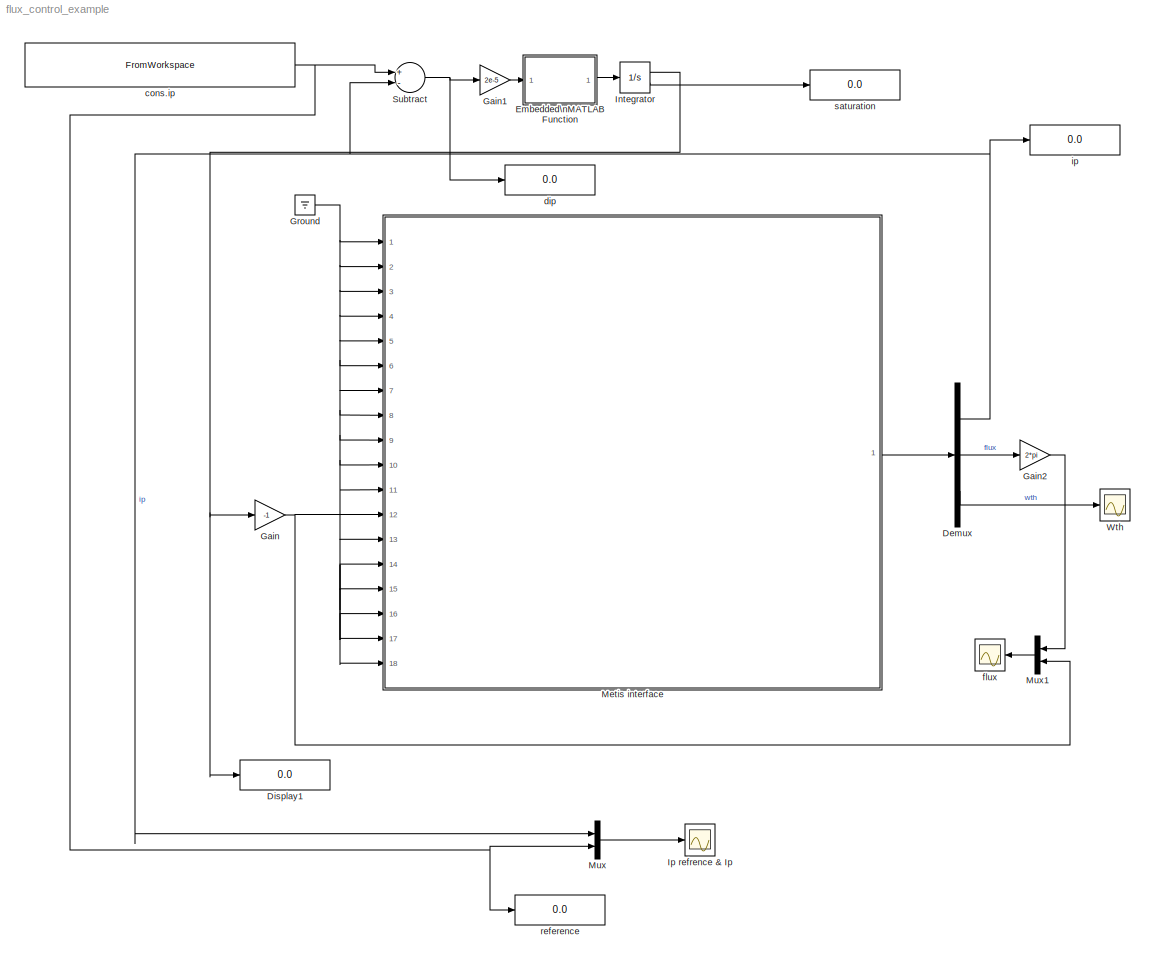
MODEL flux_control_example
KIND model
BLOCK [Demux] Demux
  DisplayOption = bar
  Outputs = 3
  Ports = [1, 3]
BLOCK [Display] Display1
  Decimation = 1
  Lockdown = off
  Ports = [1]
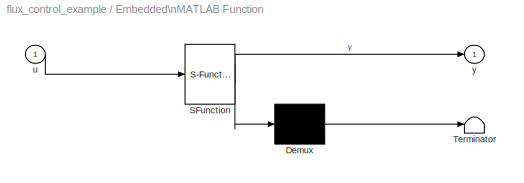
BLOCK [SubSystem] Embedded\nMATLAB Function
  MaskDescription = Embedded MATLAB block
  MaskDisplay = disp('fcn');
  MaskHideContents = off
  MaskIconFrame = on
  MaskIconOpaque = off
  MaskIconRotate = none
  MaskIconUnits = autoscale
  MaskSelfModifiable = on
  MaskType = Stateflow
  MinAlgLoopOccurrences = off
  Ports = [1, 1]
  RTWSystemCode = Auto
  TreatAsAtomicUnit = off
BLOCK [Demux] Embedded\nMATLAB Function/ Demux 
  Outputs = 1
  Ports = [1, 1]
BLOCK [S-Function] Embedded\nMATLAB Function/ SFunction 
  FunctionName = sf_sfun
  PortCounts = [1 2]
  Ports = [1, 2]
  Tag = Stateflow S-Function flux_control_example 2
BLOCK [Terminator] Embedded\nMATLAB Function/ Terminator 
BLOCK [Inport] Embedded\nMATLAB Function/u
  IconDisplay = Port number
BLOCK [Outport] Embedded\nMATLAB Function/y
  BusOutputAsStruct = off
  IconDisplay = Port number
BLOCK [Gain] Gain
  Gain = -1
  OutDataTypeMode = Inherit via internal rule
  ParameterDataTypeMode = Inherit via internal rule
  SaturateOnIntegerOverflow = off
BLOCK [Gain] Gain1
  Gain = 2e-5
  OutDataTypeMode = Inherit via internal rule
  ParameterDataTypeMode = Inherit via internal rule
  SaturateOnIntegerOverflow = off
BLOCK [Gain] Gain2
  Gain = 2*pi
  OutDataTypeMode = Inherit via internal rule
  ParameterDataTypeMode = Inherit via internal rule
  SaturateOnIntegerOverflow = off
BLOCK [Ground] Ground
BLOCK [Integrator] Integrator
  IgnoreLimit = off
  Ports = [1, 2]
  ShowSaturationPort = on
  ZeroCross = off
BLOCK [Scope] Ip refrence & Ip
  DataFormat = StructureWithTime
  Floating = off
  NumInputPorts = 1
  Ports = [1]
  SampleTime = 0
  SaveName = ScopeData3
  YMax = 800000
  YMin = 0
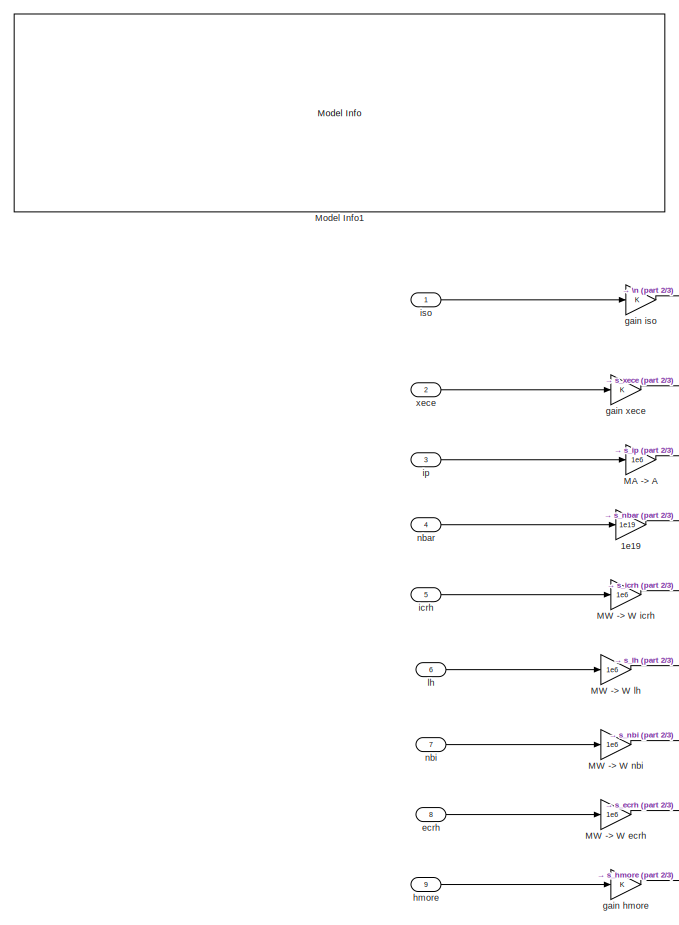
[diagram: Metis interface - part 1/3, top left region]
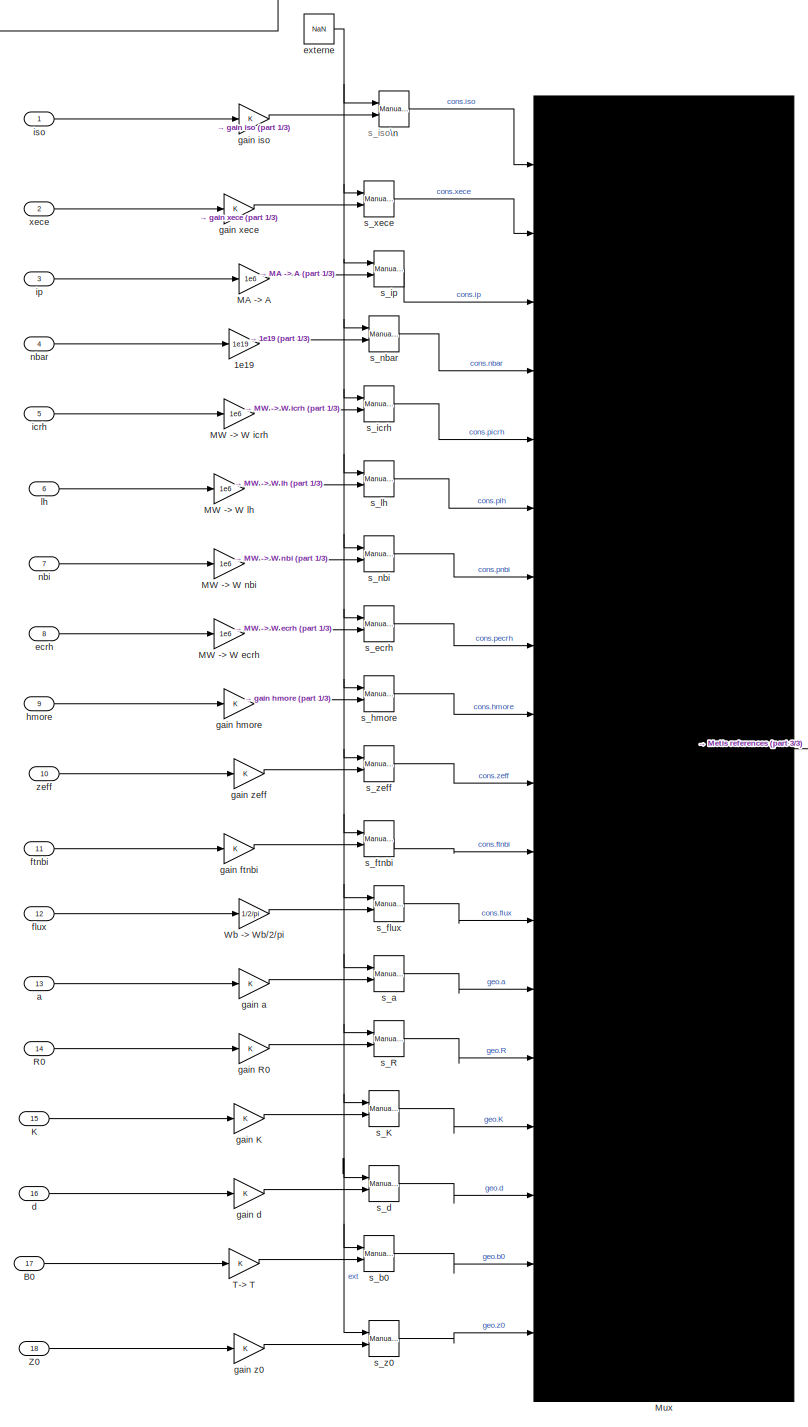
[diagram: Metis interface - part 2/3, center side, full height]
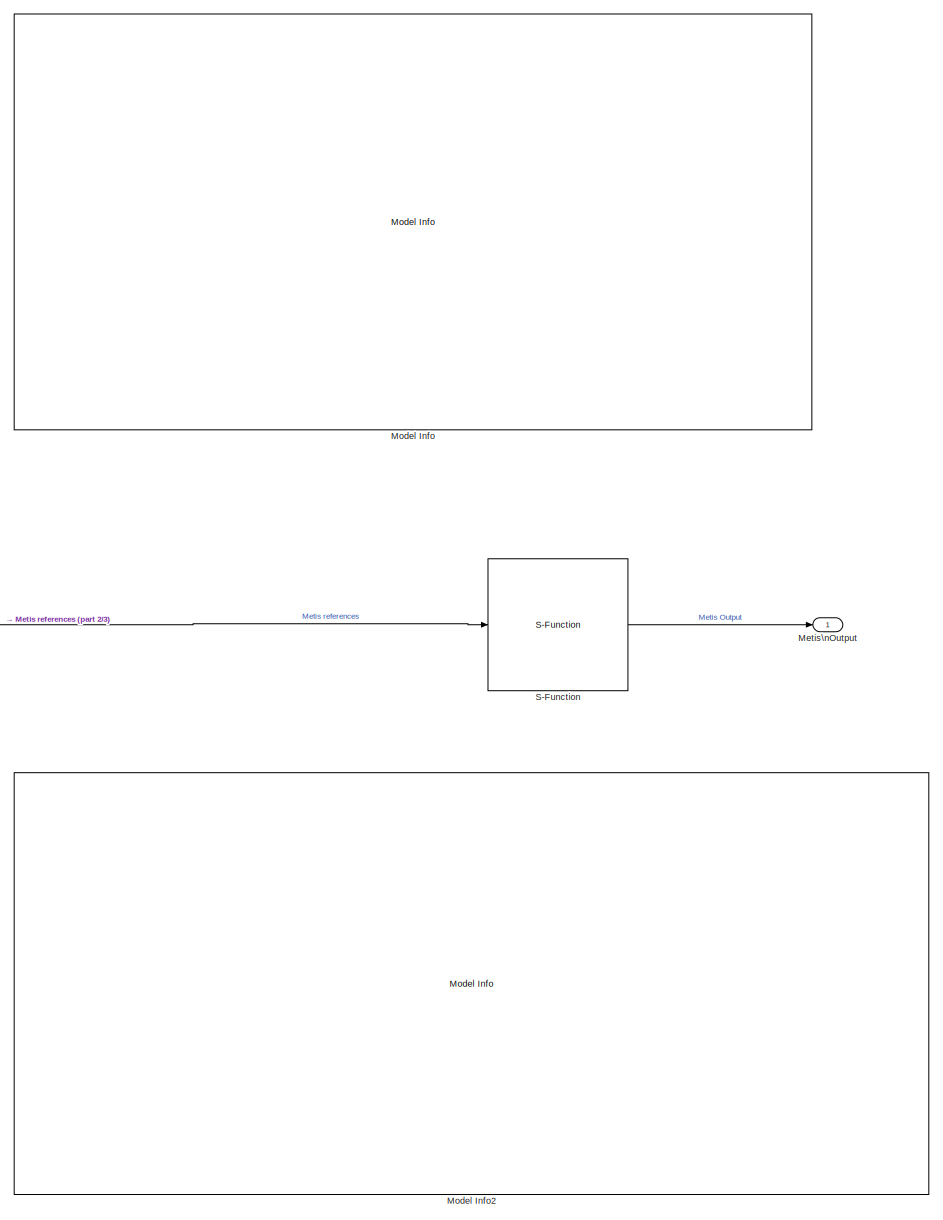
[diagram: Metis interface - part 3/3, right side, full height]
BLOCK [SubSystem] Metis interface
  AncestorBlock = library_simmetis/Metis interface
  MaskHideContents = off
  MinAlgLoopOccurrences = off
  Ports = [18, 1]
  RTWSystemCode = Auto
  TreatAsAtomicUnit = on
BLOCK [Gain] Metis interface/1e19
  Gain = 1e19
  OutDataTypeMode = Inherit via internal rule
  ParameterDataTypeMode = Inherit via internal rule
  SaturateOnIntegerOverflow = off
BLOCK [Inport] Metis interface/B0
  IconDisplay = Port number
  Port = 17
BLOCK [Inport] Metis interface/K
  IconDisplay = Port number
  Port = 15
BLOCK [Gain] Metis interface/MA -> A
  Gain = 1e6
  OutDataTypeMode = Inherit via internal rule
  ParameterDataTypeMode = Inherit via internal rule
  SaturateOnIntegerOverflow = off
BLOCK [Gain] Metis interface/MW -> W ecrh
  Gain = 1e6
  OutDataTypeMode = Inherit via internal rule
  ParameterDataTypeMode = Inherit via internal rule
  SaturateOnIntegerOverflow = off
BLOCK [Gain] Metis interface/MW -> W icrh
  Gain = 1e6
  OutDataTypeMode = Inherit via internal rule
  ParameterDataTypeMode = Inherit via internal rule
  SaturateOnIntegerOverflow = off
BLOCK [Gain] Metis interface/MW -> W lh
  Gain = 1e6
  OutDataTypeMode = Inherit via internal rule
  ParameterDataTypeMode = Inherit via internal rule
  SaturateOnIntegerOverflow = off
BLOCK [Gain] Metis interface/MW -> W nbi
  Gain = 1e6
  OutDataTypeMode = Inherit via internal rule
  ParameterDataTypeMode = Inherit via internal rule
  SaturateOnIntegerOverflow = off
BLOCK [Outport] Metis interface/Metis\nOutput
  BusOutputAsStruct = off
  IconDisplay = Port number
BLOCK [Reference] Metis interface/Model Info  REF=simulink/Model-Wide\nUtilities/Model Info
  BlockCM = None
  DisplayStringWithTags = Interface_SimMetis : Library simmetis interface\n%<Created>\n%<ModifiedBy>\n%<ModifiedDate>\n%<ModifiedComment>\n%<Description>
  Frame = on
  HorizontalTextAlignment = Center
  InitialBlockCM = None
  LeftAlignmentValue = 0.5
  MaskDisplayString = Interface_SimMetis : Library simmetis interface\\nFri Oct 12 05:05:33 2007\\nJA132999\\nMon Oct 15 07:31:05 2007\\n\\n
  Ports = []
  ShowPortLabels = on
  SourceBlock = simulink/Model-Wide\nUtilities/Model Info
  SourceBlockDiagram = flux_control_example
  SourceType = CMBlock
  TagMaxNumber = 20
BLOCK [Reference] Metis interface/Model Info1  REF=simulink/Model-Wide\nUtilities/Model Info
  BlockCM = None
  DisplayStringWithTags = when an input is set to NaN, \nthe correspondant reference value\nis read from Metis file (or data) \nand linearely interpolate in time.
  Frame = on
  HorizontalTextAlignment = Center
  InitialBlockCM = None
  LeftAlignmentValue = 0.5
  MaskDisplayString = when an input is set to NaN, \\nthe correspondant reference value\\nis read from Metis file (or data) \\nand linearely interpolate in time.
  Ports = []
  ShowPortLabels = on
  SourceBlock = simulink/Model-Wide\nUtilities/Model Info
  SourceBlockDiagram = flux_control_example
  SourceType = CMBlock
  TagMaxNumber = 20
BLOCK [Reference] Metis interface/Model Info2  REF=simulink/Model-Wide\nUtilities/Model Info
  BlockCM = None
  DisplayStringWithTags = Simmetis parameters :\n* Metis_file_name : used to parametring Metis in simmetis \n(if empty used z0dinput in workspace,\n that allow to tune simulation configuration form Metis interface)\n* list_output : cell array of output names\n* save_file : results filename (optionnel)\n* verbose  : if = 1 turn on information writing
  Frame = on
  HorizontalTextAlignment = Left
  InitialBlockCM = None
  LeftAlignmentValue = 0.02
  MaskDisplayString = Simmetis parameters :\\n* Metis_file_name : used to parametring Metis in simmetis \\n(if empty used z0dinput in workspace,\\n that allow to tune simulation configuration form Metis interface)\\n* list_output : cell array of output names\\n* save_file : results filename (optionnel)\\n* verbose  : if = 1 turn on information writing
  Ports = []
  ShowPortLabels = on
  SourceBlock = simulink/Model-Wide\nUtilities/Model Info
  SourceBlockDiagram = flux_control_example
  SourceType = CMBlock
  TagMaxNumber = 20
BLOCK [Mux] Metis interface/Mux
  DisplayOption = signals
  Inputs = 18
  Ports = [18, 1]
  Tag = Metis refererences
BLOCK [Inport] Metis interface/R0
  IconDisplay = Port number
  Port = 14
BLOCK [S-Function] Metis interface/S-Function
  FunctionName = simmetis
  Parameters = '',{'ip','psi@21','wth'},'',0
  Ports = [1, 1]
BLOCK [Gain] Metis interface/T-> T
  OutDataTypeMode = Inherit via internal rule
  ParameterDataTypeMode = Inherit via internal rule
  SaturateOnIntegerOverflow = off
BLOCK [Gain] Metis interface/Wb -> Wb//2//pi
  Gain = 1/2/pi
  OutDataTypeMode = Inherit via internal rule
  ParameterDataTypeMode = Inherit via internal rule
  SaturateOnIntegerOverflow = off
BLOCK [Inport] Metis interface/Z0
  IconDisplay = Port number
  Port = 18
BLOCK [Reference] Metis interface/\n  REF=simulink/Signal\nRouting/Manual Switch
  Ports = [2, 1]
  ShowPortLabels = on
  SourceBlock = simulink/Signal\nRouting/Manual Switch
  SourceType = Manual Switch
  action = 0
  sw = 1
BLOCK [Inport] Metis interface/a
  IconDisplay = Port number
  Port = 13
BLOCK [Inport] Metis interface/d
  IconDisplay = Port number
  Port = 16
BLOCK [Inport] Metis interface/ecrh
  IconDisplay = Port number
  Port = 8
BLOCK [Constant] Metis interface/externe
  Value = NaN
BLOCK [Inport] Metis interface/flux
  IconDisplay = Port number
  Port = 12
BLOCK [Inport] Metis interface/ftnbi
  IconDisplay = Port number
  Port = 11
BLOCK [Gain] Metis interface/gain K
  OutDataTypeMode = Inherit via internal rule
  ParameterDataTypeMode = Inherit via internal rule
  SaturateOnIntegerOverflow = off
BLOCK [Gain] Metis interface/gain R0
  OutDataTypeMode = Inherit via internal rule
  ParameterDataTypeMode = Inherit via internal rule
  SaturateOnIntegerOverflow = off
BLOCK [Gain] Metis interface/gain a
  OutDataTypeMode = Inherit via internal rule
  ParameterDataTypeMode = Inherit via internal rule
  SaturateOnIntegerOverflow = off
BLOCK [Gain] Metis interface/gain d
  OutDataTypeMode = Inherit via internal rule
  ParameterDataTypeMode = Inherit via internal rule
  SaturateOnIntegerOverflow = off
BLOCK [Gain] Metis interface/gain ftnbi
  OutDataTypeMode = Inherit via internal rule
  ParameterDataTypeMode = Inherit via internal rule
  SaturateOnIntegerOverflow = off
BLOCK [Gain] Metis interface/gain hmore
  OutDataTypeMode = Inherit via internal rule
  ParameterDataTypeMode = Inherit via internal rule
  SaturateOnIntegerOverflow = off
BLOCK [Gain] Metis interface/gain iso
  OutDataTypeMode = Inherit via internal rule
  ParameterDataTypeMode = Inherit via internal rule
  SaturateOnIntegerOverflow = off
BLOCK [Gain] Metis interface/gain xece
  OutDataTypeMode = Inherit via internal rule
  ParameterDataTypeMode = Inherit via internal rule
  SaturateOnIntegerOverflow = off
BLOCK [Gain] Metis interface/gain z0
  OutDataTypeMode = Inherit via internal rule
  ParameterDataTypeMode = Inherit via internal rule
  SaturateOnIntegerOverflow = off
BLOCK [Gain] Metis interface/gain zeff
  OutDataTypeMode = Inherit via internal rule
  ParameterDataTypeMode = Inherit via internal rule
  SaturateOnIntegerOverflow = off
BLOCK [Inport] Metis interface/hmore
  IconDisplay = Port number
  Port = 9
BLOCK [Inport] Metis interface/icrh
  IconDisplay = Port number
  Port = 5
BLOCK [Inport] Metis interface/ip
  IconDisplay = Port number
  Port = 3
BLOCK [Inport] Metis interface/iso
  IconDisplay = Port number
BLOCK [Inport] Metis interface/lh
  IconDisplay = Port number
  Port = 6
BLOCK [Inport] Metis interface/nbar
  IconDisplay = Port number
  Port = 4
BLOCK [Inport] Metis interface/nbi
  IconDisplay = Port number
  Port = 7
BLOCK [Reference] Metis interface/s_K  REF=simulink/Signal\nRouting/Manual Switch
  Ports = [2, 1]
  ShowPortLabels = on
  SourceBlock = simulink/Signal\nRouting/Manual Switch
  SourceType = Manual Switch
  action = 0
  sw = 1
BLOCK [Reference] Metis interface/s_R  REF=simulink/Signal\nRouting/Manual Switch
  Ports = [2, 1]
  ShowPortLabels = on
  SourceBlock = simulink/Signal\nRouting/Manual Switch
  SourceType = Manual Switch
  action = 0
  sw = 1
BLOCK [Reference] Metis interface/s_a  REF=simulink/Signal\nRouting/Manual Switch
  Ports = [2, 1]
  ShowPortLabels = on
  SourceBlock = simulink/Signal\nRouting/Manual Switch
  SourceType = Manual Switch
  action = 0
  sw = 1
BLOCK [Reference] Metis interface/s_b0  REF=simulink/Signal\nRouting/Manual Switch
  Ports = [2, 1]
  ShowPortLabels = on
  SourceBlock = simulink/Signal\nRouting/Manual Switch
  SourceType = Manual Switch
  action = 0
  sw = 1
BLOCK [Reference] Metis interface/s_d  REF=simulink/Signal\nRouting/Manual Switch
  Ports = [2, 1]
  ShowPortLabels = on
  SourceBlock = simulink/Signal\nRouting/Manual Switch
  SourceType = Manual Switch
  action = 0
  sw = 1
BLOCK [Reference] Metis interface/s_ecrh  REF=simulink/Signal\nRouting/Manual Switch
  Ports = [2, 1]
  ShowPortLabels = on
  SourceBlock = simulink/Signal\nRouting/Manual Switch
  SourceType = Manual Switch
  action = 0
  sw = 1
BLOCK [Reference] Metis interface/s_flux  REF=simulink/Signal\nRouting/Manual Switch
  Ports = [2, 1]
  ShowPortLabels = on
  SourceBlock = simulink/Signal\nRouting/Manual Switch
  SourceType = Manual Switch
  action = 0
  sw = 0
BLOCK [Reference] Metis interface/s_ftnbi  REF=simulink/Signal\nRouting/Manual Switch
  Ports = [2, 1]
  ShowPortLabels = on
  SourceBlock = simulink/Signal\nRouting/Manual Switch
  SourceType = Manual Switch
  action = 0
  sw = 1
BLOCK [Reference] Metis interface/s_hmore  REF=simulink/Signal\nRouting/Manual Switch
  Ports = [2, 1]
  ShowPortLabels = on
  SourceBlock = simulink/Signal\nRouting/Manual Switch
  SourceType = Manual Switch
  action = 0
  sw = 1
BLOCK [Reference] Metis interface/s_icrh  REF=simulink/Signal\nRouting/Manual Switch
  Ports = [2, 1]
  ShowPortLabels = on
  SourceBlock = simulink/Signal\nRouting/Manual Switch
  SourceType = Manual Switch
  action = 0
  sw = 1
BLOCK [Reference] Metis interface/s_ip  REF=simulink/Signal\nRouting/Manual Switch
  Ports = [2, 1]
  ShowPortLabels = on
  SourceBlock = simulink/Signal\nRouting/Manual Switch
  SourceType = Manual Switch
  action = 0
  sw = 1
BLOCK [Reference] Metis interface/s_lh  REF=simulink/Signal\nRouting/Manual Switch
  Ports = [2, 1]
  ShowPortLabels = on
  SourceBlock = simulink/Signal\nRouting/Manual Switch
  SourceType = Manual Switch
  action = 0
  sw = 1
BLOCK [Reference] Metis interface/s_nbar  REF=simulink/Signal\nRouting/Manual Switch
  Ports = [2, 1]
  ShowPortLabels = on
  SourceBlock = simulink/Signal\nRouting/Manual Switch
  SourceType = Manual Switch
  action = 0
  sw = 1
BLOCK [Reference] Metis interface/s_nbi  REF=simulink/Signal\nRouting/Manual Switch
  Ports = [2, 1]
  ShowPortLabels = on
  SourceBlock = simulink/Signal\nRouting/Manual Switch
  SourceType = Manual Switch
  action = 0
  sw = 1
BLOCK [Reference] Metis interface/s_xece  REF=simulink/Signal\nRouting/Manual Switch
  Ports = [2, 1]
  ShowPortLabels = on
  SourceBlock = simulink/Signal\nRouting/Manual Switch
  SourceType = Manual Switch
  action = 0
  sw = 1
BLOCK [Reference] Metis interface/s_z0  REF=simulink/Signal\nRouting/Manual Switch
  Ports = [2, 1]
  ShowPortLabels = on
  SourceBlock = simulink/Signal\nRouting/Manual Switch
  SourceType = Manual Switch
  action = 0
  sw = 1
BLOCK [Reference] Metis interface/s_zeff  REF=simulink/Signal\nRouting/Manual Switch
  Ports = [2, 1]
  ShowPortLabels = on
  SourceBlock = simulink/Signal\nRouting/Manual Switch
  SourceType = Manual Switch
  action = 0
  sw = 1
BLOCK [Inport] Metis interface/xece
  IconDisplay = Port number
  Port = 2
BLOCK [Inport] Metis interface/zeff
  IconDisplay = Port number
  Port = 10
BLOCK [Mux] Mux
  DisplayOption = bar
  Inputs = 2
  Ports = [2, 1]
BLOCK [Mux] Mux1
  DisplayOption = bar
  Inputs = 2
  Ports = [2, 1]
BLOCK [Sum] Subtract
  InputSameDT = off
  Inputs = +-
  OutDataTypeMode = Inherit via internal rule
  OutScaling = 2^-10
  Ports = [2, 1]
  SaturateOnIntegerOverflow = off
BLOCK [Scope] Wth
  DataFormat = StructureWithTime
  Floating = off
  NumInputPorts = 1
  Ports = [1]
  SampleTime = 0
  YMax = 100000
  YMin = 0
BLOCK [FromWorkspace] cons.ip
  SampleTime = 0
  VariableName = [z0dinput.cons.temps,z0dinput.cons.ip]
  ZeroCross = on
BLOCK [Display] dip
  Decimation = 1
  Lockdown = off
  Ports = [1]
BLOCK [Scope] flux
  DataFormat = StructureWithTime
  Floating = off
  NumInputPorts = 1
  Ports = [1]
  SampleTime = 0
  SaveName = ScopeData1
  YMax = 0.25
  YMin = -2
BLOCK [Display] ip
  Decimation = 1
  Lockdown = off
  Ports = [1]
BLOCK [Display] reference
  Decimation = 1
  Lockdown = off
  Ports = [1]
BLOCK [Display] saturation
  Decimation = 1
  Lockdown = off
  Ports = [1]
ANNOTATION Metis interface: s_iso
NET Demux:1 -> Mux:1, Subtract:2, ip:1
LINE Demux:2 -> Gain2:1
LINE Demux:3 -> Wth:1
LINE Embedded\nMATLAB Function/ Demux :1 -> Embedded\nMATLAB Function/ Terminator :1
LINE Embedded\nMATLAB Function/ SFunction :1 -> Embedded\nMATLAB Function/ Demux :1
LINE Embedded\nMATLAB Function/ SFunction :2 -> Embedded\nMATLAB Function/y:1
LINE Embedded\nMATLAB Function/u:1 -> Embedded\nMATLAB Function/ SFunction :1
LINE Embedded\nMATLAB Function:1 -> Integrator:1
LINE Gain1:1 -> Embedded\nMATLAB Function:1
LINE Gain2:1 -> Mux1:1
NET Gain:1 -> Metis interface:12, Mux1:2
NET Ground:1 -> Metis interface:1, Metis interface:10, Metis interface:11, Metis interface:13, Metis interface:14, Metis interface:15, Metis interface:16, Metis interface:17, Metis interface:18, Metis interface:2, Metis interface:3, Metis interface:4, Metis interface:5, Metis interface:6, Metis interface:7, Metis interface:8, Metis interface:9
NET Integrator:1 -> Display1:1, Gain:1
LINE Integrator:2 -> saturation:1
LINE Metis interface/1e19:1 -> Metis interface/s_nbar:2
LINE Metis interface/B0:1 -> Metis interface/T-> T:1
LINE Metis interface/K:1 -> Metis interface/gain K:1
LINE Metis interface/MA -> A:1 -> Metis interface/s_ip:2
LINE Metis interface/MW -> W ecrh:1 -> Metis interface/s_ecrh:2
LINE Metis interface/MW -> W icrh:1 -> Metis interface/s_icrh:2
LINE Metis interface/MW -> W lh:1 -> Metis interface/s_lh:2
LINE Metis interface/MW -> W nbi:1 -> Metis interface/s_nbi:2
LINE Metis interface/Mux:1 -> Metis interface/S-Function:1
LINE Metis interface/R0:1 -> Metis interface/gain R0:1
LINE Metis interface/S-Function:1 -> Metis interface/Metis\nOutput:1
LINE Metis interface/T-> T:1 -> Metis interface/s_b0:2
LINE Metis interface/Wb -> Wb//2//pi:1 -> Metis interface/s_flux:2
LINE Metis interface/Z0:1 -> Metis interface/gain z0:1
LINE Metis interface/\n:1 -> Metis interface/Mux:1
LINE Metis interface/a:1 -> Metis interface/gain a:1
LINE Metis interface/d:1 -> Metis interface/gain d:1
LINE Metis interface/ecrh:1 -> Metis interface/MW -> W ecrh:1
NET Metis interface/externe:1 -> Metis interface/\n:1, Metis interface/s_K:1, Metis interface/s_R:1, Metis interface/s_a:1, Metis interface/s_b0:1, Metis interface/s_d:1, Metis interface/s_ecrh:1, Metis interface/s_flux:1, Metis interface/s_ftnbi:1, Metis interface/s_hmore:1, Metis interface/s_icrh:1, Metis interface/s_ip:1, Metis interface/s_lh:1, Metis interface/s_nbar:1, Metis interface/s_nbi:1, Metis interface/s_xece:1, Metis interface/s_z0:1, Metis interface/s_zeff:1
LINE Metis interface/flux:1 -> Metis interface/Wb -> Wb//2//pi:1
LINE Metis interface/ftnbi:1 -> Metis interface/gain ftnbi:1
LINE Metis interface/gain K:1 -> Metis interface/s_K:2
LINE Metis interface/gain R0:1 -> Metis interface/s_R:2
LINE Metis interface/gain a:1 -> Metis interface/s_a:2
LINE Metis interface/gain d:1 -> Metis interface/s_d:2
LINE Metis interface/gain ftnbi:1 -> Metis interface/s_ftnbi:2
LINE Metis interface/gain hmore:1 -> Metis interface/s_hmore:2
LINE Metis interface/gain iso:1 -> Metis interface/\n:2
LINE Metis interface/gain xece:1 -> Metis interface/s_xece:2
LINE Metis interface/gain z0:1 -> Metis interface/s_z0:2
LINE Metis interface/gain zeff:1 -> Metis interface/s_zeff:2
LINE Metis interface/hmore:1 -> Metis interface/gain hmore:1
LINE Metis interface/icrh:1 -> Metis interface/MW -> W icrh:1
LINE Metis interface/ip:1 -> Metis interface/MA -> A:1
LINE Metis interface/iso:1 -> Metis interface/gain iso:1
LINE Metis interface/lh:1 -> Metis interface/MW -> W lh:1
LINE Metis interface/nbar:1 -> Metis interface/1e19:1
LINE Metis interface/nbi:1 -> Metis interface/MW -> W nbi:1
LINE Metis interface/s_K:1 -> Metis interface/Mux:15
LINE Metis interface/s_R:1 -> Metis interface/Mux:14
LINE Metis interface/s_a:1 -> Metis interface/Mux:13
LINE Metis interface/s_b0:1 -> Metis interface/Mux:17
LINE Metis interface/s_d:1 -> Metis interface/Mux:16
LINE Metis interface/s_ecrh:1 -> Metis interface/Mux:8
LINE Metis interface/s_flux:1 -> Metis interface/Mux:12
LINE Metis interface/s_ftnbi:1 -> Metis interface/Mux:11
LINE Metis interface/s_hmore:1 -> Metis interface/Mux:9
LINE Metis interface/s_icrh:1 -> Metis interface/Mux:5
LINE Metis interface/s_ip:1 -> Metis interface/Mux:3
LINE Metis interface/s_lh:1 -> Metis interface/Mux:6
LINE Metis interface/s_nbar:1 -> Metis interface/Mux:4
LINE Metis interface/s_nbi:1 -> Metis interface/Mux:7
LINE Metis interface/s_xece:1 -> Metis interface/Mux:2
LINE Metis interface/s_z0:1 -> Metis interface/Mux:18
LINE Metis interface/s_zeff:1 -> Metis interface/Mux:10
LINE Metis interface/xece:1 -> Metis interface/gain xece:1
LINE Metis interface/zeff:1 -> Metis interface/gain zeff:1
LINE Metis interface:1 -> Demux:1
LINE Mux1:1 -> flux:1
LINE Mux:1 -> Ip refrence & Ip:1
NET Subtract:1 -> Gain1:1, dip:1
NET cons.ip:1 -> Mux:2, Subtract:1, reference:1
note: NET lines group one-source signal fan-out (src -> all destinations, sorted); 1:1 wires keep LINE
CHART Embedded\nMATLAB Function states=1 transitions=1
  STATE_LABEL 'eML_blk_kernel()'
